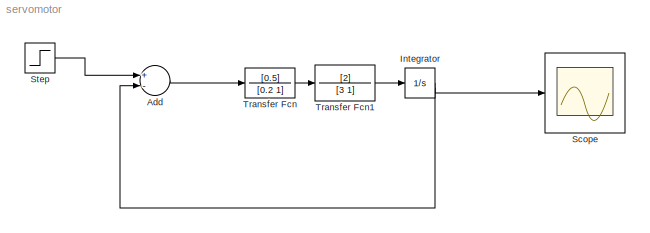
MODEL servomotor
KIND model
BLOCK [Sum] Add
  InputSameDT = off
  Inputs = +-
  OutDataTypeStr = Inherit: Inherit via internal rule
  Ports = [2, 1]
  SID = 8
  SaturateOnIntegerOverflow = off
BLOCK [Integrator] Integrator
  Ports = [1, 1]
  SID = 3
BLOCK [Scope] Scope
  DataFormat = StructureWithTime
  Floating = off
  NumInputPorts = 1
  Ports = [1]
  SID = 9
  SampleTime = 0
  ShowLegends = off
BLOCK [Step] Step
  SID = 10
  SampleTime = 0
BLOCK [TransferFcn] Transfer Fcn
  Denominator = [0.2 1]
  Numerator = [0.5]
  SID = 6
BLOCK [TransferFcn] Transfer Fcn1
  Denominator = [3 1]
  Numerator = [2]
  SID = 7
LINE Add:1 -> Transfer Fcn:1
NET Integrator:1 -> Add:2, Scope:1
LINE Step:1 -> Add:1
LINE Transfer Fcn1:1 -> Integrator:1
LINE Transfer Fcn:1 -> Transfer Fcn1:1
note: NET lines group one-source signal fan-out (src -> all destinations, sorted); 1:1 wires keep LINE
